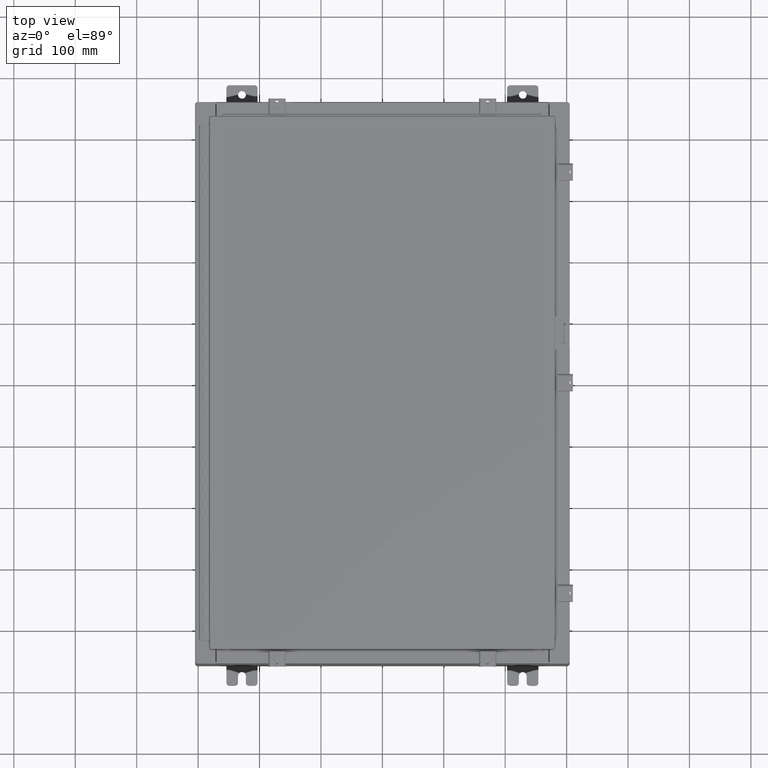
[diagram: clean part render]
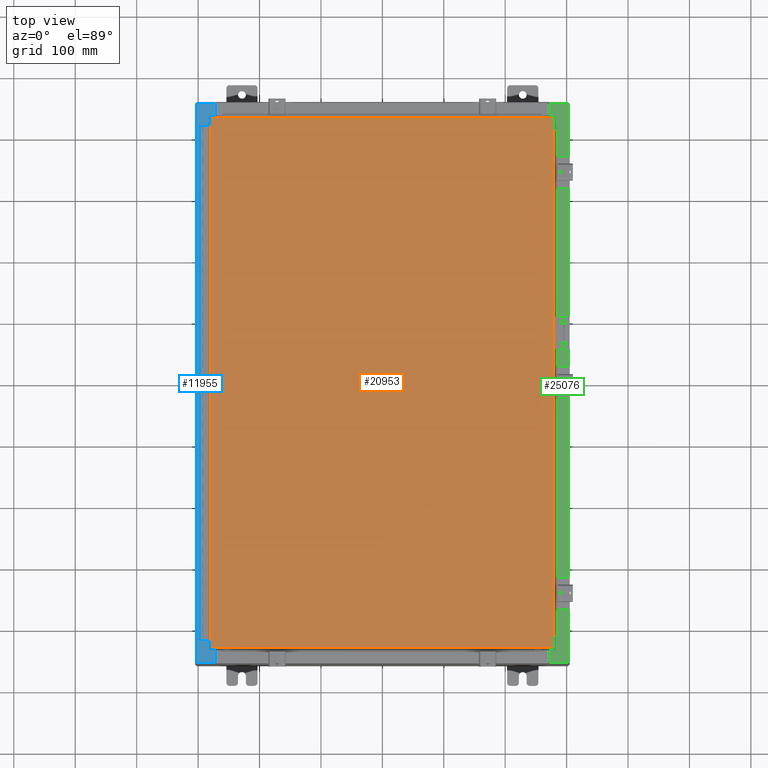
[diagram: same view with three faces highlighted in distinct colors, each labeled with its STEP entity id]
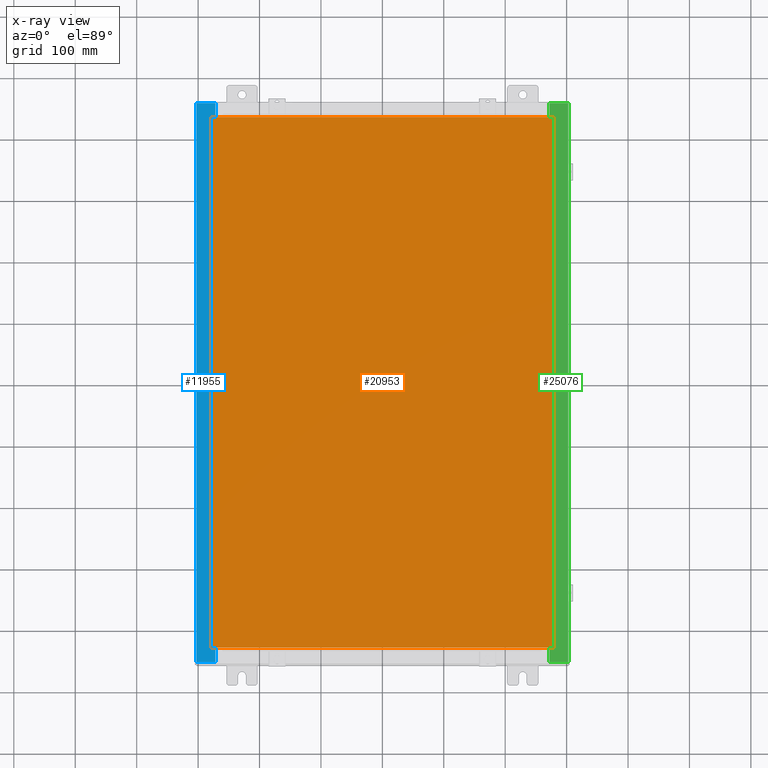
[diagram: x-ray of the same camera — body ghosted, the three highlighted faces saturated]
A machine part, top view with three faces highlighted in distinct colors.
The next image is the same camera in x-ray (body ghosted, the three faces saturated) — at least one of them is partly hidden behind the body in this view.
Their STEP definitions:

[orange] entity #20953 — the highlighted planar face has unit normal (0, 0, -1).
#152 = VECTOR ( 'NONE', #12157, 39.37007874015748100 ) ;
#1570 = ORIENTED_EDGE ( 'NONE', *, *, #20024, .T. ) ;
#1983 = CARTESIAN_POINT ( 'NONE',  ( 0.0000000000000000000, 0.0000000000000000000, 0.0000000000000000000 ) ) ;
#2294 = CARTESIAN_POINT ( 'NONE',  ( 10.99029999999999600, -17.00629999999999200, -2.048885995248197400E-016 ) ) ;
#2465 = FACE_OUTER_BOUND ( 'NONE', #27519, .T. ) ;
#4028 = ORIENTED_EDGE ( 'NONE', *, *, #34566, .T. ) ;
#4742 = VERTEX_POINT ( 'NONE', #30191 ) ;
#5471 = CARTESIAN_POINT ( 'NONE',  ( -10.99030000000000000, -17.00629999999999600, 8.878505979408856000E-016 ) ) ;
#6133 = LINE ( 'NONE', #23297, #39651 ) ;
#7067 = DIRECTION ( 'NONE',  ( 0.0000000000000000000, -1.000000000000000000, 0.0000000000000000000 ) ) ;
#8840 = LINE ( 'NONE', #41299, #152 ) ;
#9511 = CARTESIAN_POINT ( 'NONE',  ( 10.99029999999999600, -17.00629999999999200, -2.048885995248197400E-016 ) ) ;
#9953 = VECTOR ( 'NONE', #39213, 39.37007874015748100 ) ;
#10932 = ORIENTED_EDGE ( 'NONE', *, *, #17748, .T. ) ;
#12157 = DIRECTION ( 'NONE',  ( 1.000000000000000000, -0.0000000000000000000, -0.0000000000000000000 ) ) ;
#15082 = PLANE ( 'NONE',  #23181 ) ;
#17748 = EDGE_CURVE ( 'NONE', #23927, #37015, #8840, .T. ) ;
#19426 = CARTESIAN_POINT ( 'NONE',  ( -10.99030000000000500, 17.00630000000000700, -3.483106191921935600E-015 ) ) ;
#19611 = LINE ( 'NONE', #19744, #9953 ) ;
#19744 = CARTESIAN_POINT ( 'NONE',  ( 10.99029999999999800, 17.00630000000000700, -2.048885995248197400E-016 ) ) ;
#20024 = EDGE_CURVE ( 'NONE', #23460, #23927, #6133, .T. ) ;
#20953 = ADVANCED_FACE ( 'NONE', ( #2465 ), #15082, .F. ) ;
#21624 = DIRECTION ( 'NONE',  ( -1.000000000000000000, 0.0000000000000000000, -0.0000000000000000000 ) ) ;
#23181 = AXIS2_PLACEMENT_3D ( 'NONE', #1983, #41077, #21624 ) ;
#23297 = CARTESIAN_POINT ( 'NONE',  ( -10.99030000000000500, 17.00630000000000700, -3.483106191921935600E-015 ) ) ;
#23460 = VERTEX_POINT ( 'NONE', #19426 ) ;
#23927 = VERTEX_POINT ( 'NONE', #5471 ) ;
#24942 = ORIENTED_EDGE ( 'NONE', *, *, #29465, .T. ) ;
#26908 = VECTOR ( 'NONE', #38782, 39.37007874015748100 ) ;
#27519 = EDGE_LOOP ( 'NONE', ( #10932, #4028, #24942, #1570 ) ) ;
#29465 = EDGE_CURVE ( 'NONE', #4742, #23460, #19611, .T. ) ;
#30191 = CARTESIAN_POINT ( 'NONE',  ( 10.99029999999999800, 17.00630000000000700, -2.048885995248197400E-016 ) ) ;
#34566 = EDGE_CURVE ( 'NONE', #37015, #4742, #35510, .T. ) ;
#35510 = LINE ( 'NONE', #9511, #26908 ) ;
#37015 = VERTEX_POINT ( 'NONE', #2294 ) ;
#38782 = DIRECTION ( 'NONE',  ( 0.0000000000000000000, 1.000000000000000000, 0.0000000000000000000 ) ) ;
#39213 = DIRECTION ( 'NONE',  ( -1.000000000000000000, -0.0000000000000000000, -0.0000000000000000000 ) ) ;
#39651 = VECTOR ( 'NONE', #7067, 39.37007874015748100 ) ;
#41077 = DIRECTION ( 'NONE',  ( 0.0000000000000000000, 0.0000000000000000000, -1.000000000000000000 ) ) ;
#41299 = CARTESIAN_POINT ( 'NONE',  ( -10.99030000000000000, -17.00629999999999600, 8.878505979408856000E-016 ) ) ;

[blue] entity #11955 — the highlighted planar face has unit normal (0, 0, -1).
#35 = CARTESIAN_POINT ( 'NONE',  ( -10.71270000000003900, 16.59374999999999600, 9.925300000000007100 ) ) ;
#442 = DIRECTION ( 'NONE',  ( 1.000000000000000000, -8.758115402030108600E-047, 7.132762385546384700E-015 ) ) ;
#868 = CARTESIAN_POINT ( 'NONE',  ( -10.69970000000003700, -4.575329589613298800E-030, 9.925300000000007100 ) ) ;
#923 = DIRECTION ( 'NONE',  ( 7.132762385546384700E-015, 0.0000000000000000000, -1.000000000000000000 ) ) ;
#1177 = CARTESIAN_POINT ( 'NONE',  ( -10.75005000000003700, 16.59375000000000000, 9.925300000000007100 ) ) ;
#1922 = DIRECTION ( 'NONE',  ( -1.000000000000000000, 0.0000000000000000000, 0.0000000000000000000 ) ) ;
#2357 = VECTOR ( 'NONE', #4454, 39.37007874015748100 ) ;
#2380 = EDGE_CURVE ( 'NONE', #16697, #17267, #20303, .T. ) ;
#2493 = DIRECTION ( 'NONE',  ( 1.000000000000000000, -4.340572780399910900E-014, 0.0000000000000000000 ) ) ;
#2992 = VECTOR ( 'NONE', #2493, 39.37007874015748100 ) ;
#3321 = DIRECTION ( 'NONE',  ( -7.132762385546384700E-015, -0.0000000000000000000, 1.000000000000000000 ) ) ;
#3415 = VERTEX_POINT ( 'NONE', #37296 ) ;
#3619 = LINE ( 'NONE', #24726, #11244 ) ;
#3622 = ORIENTED_EDGE ( 'NONE', *, *, #40176, .F. ) ;
#3743 = LINE ( 'NONE', #35, #27652 ) ;
#3943 = CARTESIAN_POINT ( 'NONE',  ( -7.105562016127570400E-014, 0.0000000000000000000, 9.925300000000083500 ) ) ;
#4213 = AXIS2_PLACEMENT_3D ( 'NONE', #22825, #3321, #26085 ) ;
#4313 = DIRECTION ( 'NONE',  ( -1.000000000000000000, -1.087045829762336900E-031, -7.132762385546384700E-015 ) ) ;
#4454 = DIRECTION ( 'NONE',  ( 1.000000000000000000, 0.0000000000000000000, 0.0000000000000000000 ) ) ;
#4954 = EDGE_LOOP ( 'NONE', ( #29236, #25742, #39435, #23769, #17713, #5712, #15171, #19239, #20960, #41630, #3622, #11830 ) ) ;
#5428 = LINE ( 'NONE', #36132, #23796 ) ;
#5712 = ORIENTED_EDGE ( 'NONE', *, *, #26633, .T. ) ;
#5822 = VERTEX_POINT ( 'NONE', #7020 ) ;
#6568 = CARTESIAN_POINT ( 'NONE',  ( -10.69970000000003700, 16.63110000000000000, 9.925300000000007100 ) ) ;
#7020 = CARTESIAN_POINT ( 'NONE',  ( -10.69970000000003700, -17.92530000000000400, 9.925300000000007100 ) ) ;
#7416 = EDGE_CURVE ( 'NONE', #17854, #36254, #15875, .T. ) ;
#8816 = CARTESIAN_POINT ( 'NONE',  ( -10.75005000000003700, -16.61242499999999100, 9.925300000000007100 ) ) ;
#8917 = CIRCLE ( 'NONE', #4213, 0.01867499999999949400 ) ;
#11244 = VECTOR ( 'NONE', #1922, 39.37007874015748100 ) ;
#11830 = ORIENTED_EDGE ( 'NONE', *, *, #25617, .F. ) ;
#11955 = ADVANCED_FACE ( 'NONE', ( #19091 ), #20409, .F. ) ;
#12023 = CARTESIAN_POINT ( 'NONE',  ( -11.91230000000003600, 17.92529999999999600, 9.925299999999998200 ) ) ;
#12081 = DIRECTION ( 'NONE',  ( 1.000000000000000000, 0.0000000000000000000, 0.0000000000000000000 ) ) ;
#12349 = VECTOR ( 'NONE', #19481, 39.37007874015748100 ) ;
#12457 = CARTESIAN_POINT ( 'NONE',  ( -10.69970000000003700, -4.575329589613298800E-030, 9.925300000000007100 ) ) ;
#13590 = CARTESIAN_POINT ( 'NONE',  ( -10.71270000000003900, 16.59375000000000000, 9.925300000000007100 ) ) ;
#15171 = ORIENTED_EDGE ( 'NONE', *, *, #2380, .F. ) ;
#15295 = DIRECTION ( 'NONE',  ( -0.0000000000000000000, 1.000000000000000000, -0.0000000000000000000 ) ) ;
#15746 = DIRECTION ( 'NONE',  ( -4.276128853718621600E-031, 1.000000000000000000, -3.050061104355376000E-045 ) ) ;
#15875 = LINE ( 'NONE', #20509, #23551 ) ;
#16697 = VERTEX_POINT ( 'NONE', #39247 ) ;
#17158 = CARTESIAN_POINT ( 'NONE',  ( -10.75005000000003700, 16.59375000000000000, 9.925300000000007100 ) ) ;
#17267 = VERTEX_POINT ( 'NONE', #41600 ) ;
#17713 = ORIENTED_EDGE ( 'NONE', *, *, #28892, .T. ) ;
#17854 = VERTEX_POINT ( 'NONE', #35290 ) ;
#17939 = EDGE_CURVE ( 'NONE', #26847, #35328, #3743, .T. ) ;
#17989 = CARTESIAN_POINT ( 'NONE',  ( -10.69970000000003700, 16.63110000000000000, 9.925300000000007100 ) ) ;
#18794 = VERTEX_POINT ( 'NONE', #24643 ) ;
#19091 = FACE_OUTER_BOUND ( 'NONE', #4954, .T. ) ;
#19239 = ORIENTED_EDGE ( 'NONE', *, *, #20984, .F. ) ;
#19381 = EDGE_CURVE ( 'NONE', #35328, #3415, #3619, .T. ) ;
#19481 = DIRECTION ( 'NONE',  ( -1.000000000000000000, -4.340572780399910900E-014, 0.0000000000000000000 ) ) ;
#19541 = DIRECTION ( 'NONE',  ( -0.0000000000000000000, -1.000000000000000000, -0.0000000000000000000 ) ) ;
#20303 = LINE ( 'NONE', #24097, #2992 ) ;
#20409 = PLANE ( 'NONE',  #26935 ) ;
#20509 = CARTESIAN_POINT ( 'NONE',  ( -7.105562016127570400E-014, 17.92529999999999600, 9.925300000000083500 ) ) ;
#20679 = LINE ( 'NONE', #1177, #2357 ) ;
#20960 = ORIENTED_EDGE ( 'NONE', *, *, #19381, .F. ) ;
#20984 = EDGE_CURVE ( 'NONE', #3415, #16697, #33967, .T. ) ;
#22825 = CARTESIAN_POINT ( 'NONE',  ( -10.75005000000003700, 16.61242499999999800, 9.925300000000007100 ) ) ;
#23551 = VECTOR ( 'NONE', #4313, 39.37007874015748100 ) ;
#23743 = DIRECTION ( 'NONE',  ( -1.000000000000000000, 0.0000000000000000000, -7.132762385546384700E-015 ) ) ;
#23769 = ORIENTED_EDGE ( 'NONE', *, *, #39740, .F. ) ;
#23796 = VECTOR ( 'NONE', #442, 39.37007874015748100 ) ;
#24097 = CARTESIAN_POINT ( 'NONE',  ( -10.75005000000003700, -16.63109999999998900, 9.925300000000007100 ) ) ;
#24315 = EDGE_CURVE ( 'NONE', #35454, #17854, #29880, .T. ) ;
#24643 = CARTESIAN_POINT ( 'NONE',  ( -11.91230000000003600, -17.92530000000000400, 9.925299999999998200 ) ) ;
#24726 = CARTESIAN_POINT ( 'NONE',  ( -10.71270000000003900, -16.59374999999998900, 9.925300000000007100 ) ) ;
#25360 = AXIS2_PLACEMENT_3D ( 'NONE', #8816, #31520, #12081 ) ;
#25617 = EDGE_CURVE ( 'NONE', #32968, #26923, #8917, .T. ) ;
#25742 = ORIENTED_EDGE ( 'NONE', *, *, #24315, .T. ) ;
#26085 = DIRECTION ( 'NONE',  ( 1.000000000000000000, 0.0000000000000000000, 0.0000000000000000000 ) ) ;
#26633 = EDGE_CURVE ( 'NONE', #5822, #17267, #32255, .T. ) ;
#26847 = VERTEX_POINT ( 'NONE', #13590 ) ;
#26923 = VERTEX_POINT ( 'NONE', #17158 ) ;
#26935 = AXIS2_PLACEMENT_3D ( 'NONE', #3943, #923, #23743 ) ;
#27099 = CARTESIAN_POINT ( 'NONE',  ( -10.71270000000003900, -16.59374999999998900, 9.925300000000007100 ) ) ;
#27325 = VECTOR ( 'NONE', #15295, 39.37007874015748100 ) ;
#27652 = VECTOR ( 'NONE', #19541, 39.37007874015748100 ) ;
#27881 = EDGE_CURVE ( 'NONE', #35454, #32968, #31655, .T. ) ;
#28415 = CARTESIAN_POINT ( 'NONE',  ( -11.91230000000003600, 17.92529999999999600, 9.925299999999998200 ) ) ;
#28892 = EDGE_CURVE ( 'NONE', #18794, #5822, #5428, .T. ) ;
#29236 = ORIENTED_EDGE ( 'NONE', *, *, #27881, .F. ) ;
#29880 = LINE ( 'NONE', #868, #37493 ) ;
#31520 = DIRECTION ( 'NONE',  ( -7.132762385546384700E-015, -0.0000000000000000000, 1.000000000000000000 ) ) ;
#31655 = LINE ( 'NONE', #6568, #12349 ) ;
#32000 = CARTESIAN_POINT ( 'NONE',  ( -10.75005000000003700, 16.63110000000000000, 9.925300000000007100 ) ) ;
#32255 = LINE ( 'NONE', #12457, #39919 ) ;
#32968 = VERTEX_POINT ( 'NONE', #32000 ) ;
#33967 = CIRCLE ( 'NONE', #25360, 0.01867499999999949400 ) ;
#35290 = CARTESIAN_POINT ( 'NONE',  ( -10.69970000000003700, 17.92529999999999600, 9.925300000000007100 ) ) ;
#35328 = VERTEX_POINT ( 'NONE', #27099 ) ;
#35454 = VERTEX_POINT ( 'NONE', #17989 ) ;
#35945 = LINE ( 'NONE', #12023, #27325 ) ;
#36132 = CARTESIAN_POINT ( 'NONE',  ( -7.105562016127570400E-014, -17.92530000000000400, 9.925300000000083500 ) ) ;
#36254 = VERTEX_POINT ( 'NONE', #28415 ) ;
#36698 = DIRECTION ( 'NONE',  ( -4.276128853718621600E-031, 1.000000000000000000, -3.050061104355376000E-045 ) ) ;
#37296 = CARTESIAN_POINT ( 'NONE',  ( -10.75005000000003700, -16.59374999999998900, 9.925300000000007100 ) ) ;
#37493 = VECTOR ( 'NONE', #36698, 39.37007874015748100 ) ;
#39247 = CARTESIAN_POINT ( 'NONE',  ( -10.75005000000003700, -16.63109999999998900, 9.925300000000007100 ) ) ;
#39435 = ORIENTED_EDGE ( 'NONE', *, *, #7416, .T. ) ;
#39740 = EDGE_CURVE ( 'NONE', #18794, #36254, #35945, .T. ) ;
#39919 = VECTOR ( 'NONE', #15746, 39.37007874015748100 ) ;
#40176 = EDGE_CURVE ( 'NONE', #26923, #26847, #20679, .T. ) ;
#41600 = CARTESIAN_POINT ( 'NONE',  ( -10.69970000000003700, -16.63109999999998900, 9.925300000000007100 ) ) ;
#41630 = ORIENTED_EDGE ( 'NONE', *, *, #17939, .F. ) ;

[green] entity #25076 — the highlighted planar face has unit normal (-0, -0, -1).
#382 = LINE ( 'NONE', #11375, #16690 ) ;
#1447 = AXIS2_PLACEMENT_3D ( 'NONE', #31362, #2240, #25053 ) ;
#1458 = EDGE_CURVE ( 'NONE', #34461, #41518, #27004, .T. ) ;
#1493 = LINE ( 'NONE', #32768, #18793 ) ;
#2140 = EDGE_CURVE ( 'NONE', #37811, #28998, #1493, .T. ) ;
#2154 = CARTESIAN_POINT ( 'NONE',  ( 11.91230000000003700, -17.92530000000000000, 9.925300000000001800 ) ) ;
#2190 = VECTOR ( 'NONE', #2943, 39.37007874015748100 ) ;
#2240 = DIRECTION ( 'NONE',  ( -5.349571789159788500E-015, -6.096072018129155300E-017, -1.000000000000000000 ) ) ;
#2308 = CARTESIAN_POINT ( 'NONE',  ( 10.75005000000003400, -16.63109999999999600, 9.925300000000008900 ) ) ;
#2393 = EDGE_CURVE ( 'NONE', #16133, #35554, #37586, .T. ) ;
#2420 = ORIENTED_EDGE ( 'NONE', *, *, #36373, .F. ) ;
#2943 = DIRECTION ( 'NONE',  ( -1.000000000000000000, 0.0000000000000000000, 0.0000000000000000000 ) ) ;
#2969 = DIRECTION ( 'NONE',  ( 0.0000000000000000000, -1.000000000000000000, 6.096072018129155300E-017 ) ) ;
#3214 = VERTEX_POINT ( 'NONE', #22195 ) ;
#3429 = CARTESIAN_POINT ( 'NONE',  ( 10.69970000000003700, 6.050534360153735500E-016, 9.925300000000008900 ) ) ;
#5590 = CARTESIAN_POINT ( 'NONE',  ( 10.69970000000003700, 16.63109999999999600, 9.925300000000008900 ) ) ;
#5595 = DIRECTION ( 'NONE',  ( -0.0000000000000000000, 1.000000000000000000, -0.0000000000000000000 ) ) ;
#5760 = CARTESIAN_POINT ( 'NONE',  ( 10.69970000000003700, 6.050534360153735500E-016, 9.925300000000008900 ) ) ;
#5970 = EDGE_CURVE ( 'NONE', #16133, #11806, #8370, .T. ) ;
#6550 = EDGE_CURVE ( 'NONE', #8604, #7927, #10861, .T. ) ;
#6656 = DIRECTION ( 'NONE',  ( 5.349571789159788500E-015, 6.096072018129155300E-017, 1.000000000000000000 ) ) ;
#7853 = CARTESIAN_POINT ( 'NONE',  ( 10.75005000000003400, -16.61242499999999800, 9.925300000000016000 ) ) ;
#7927 = VERTEX_POINT ( 'NONE', #10083 ) ;
#8301 = ORIENTED_EDGE ( 'NONE', *, *, #14749, .F. ) ;
#8370 = LINE ( 'NONE', #3429, #32230 ) ;
#8402 = DIRECTION ( 'NONE',  ( -1.000000000000000000, 0.0000000000000000000, 5.349571789159789300E-015 ) ) ;
#8604 = VERTEX_POINT ( 'NONE', #26676 ) ;
#9652 = CARTESIAN_POINT ( 'NONE',  ( 10.75005000000003400, 16.63109999999999300, 9.925300000000016000 ) ) ;
#10083 = CARTESIAN_POINT ( 'NONE',  ( 10.71270000000003500, -16.59374999999999600, 9.925300000000016000 ) ) ;
#10693 = EDGE_CURVE ( 'NONE', #35554, #8604, #35940, .T. ) ;
#10861 = LINE ( 'NONE', #25727, #2190 ) ;
#11091 = DIRECTION ( 'NONE',  ( 1.000000000000000000, 0.0000000000000000000, 0.0000000000000000000 ) ) ;
#11375 = CARTESIAN_POINT ( 'NONE',  ( 5.335691853495959100E-014, -17.92530000000000000, 9.925300000000067500 ) ) ;
#11520 = DIRECTION ( 'NONE',  ( 1.000000000000000000, 0.0000000000000000000, 8.681145560800575300E-014 ) ) ;
#11672 = ORIENTED_EDGE ( 'NONE', *, *, #28611, .F. ) ;
#11784 = EDGE_CURVE ( 'NONE', #28998, #3214, #24238, .T. ) ;
#11806 = VERTEX_POINT ( 'NONE', #23019 ) ;
#11923 = PLANE ( 'NONE',  #1447 ) ;
#12253 = EDGE_CURVE ( 'NONE', #41518, #33780, #42000, .T. ) ;
#12915 = DIRECTION ( 'NONE',  ( -1.000000000000000000, 0.0000000000000000000, -8.681145560800575300E-014 ) ) ;
#14749 = EDGE_CURVE ( 'NONE', #7927, #37811, #41564, .T. ) ;
#15487 = CARTESIAN_POINT ( 'NONE',  ( 11.91230000000003700, 17.92529999999999600, 9.925300000000001800 ) ) ;
#16133 = VERTEX_POINT ( 'NONE', #29927 ) ;
#16690 = VECTOR ( 'NONE', #21190, 39.37007874015748100 ) ;
#17269 = ORIENTED_EDGE ( 'NONE', *, *, #10693, .F. ) ;
#17518 = ORIENTED_EDGE ( 'NONE', *, *, #2393, .F. ) ;
#18793 = VECTOR ( 'NONE', #28643, 39.37007874015748100 ) ;
#19138 = ORIENTED_EDGE ( 'NONE', *, *, #2140, .F. ) ;
#19729 = CARTESIAN_POINT ( 'NONE',  ( 10.71270000000003500, 16.59374999999999600, 9.925300000000016000 ) ) ;
#21190 = DIRECTION ( 'NONE',  ( 1.000000000000000000, 0.0000000000000000000, -5.349571789159789300E-015 ) ) ;
#21265 = DIRECTION ( 'NONE',  ( -6.096072018129156600E-017, -1.000000000000000000, 6.096072018129187400E-017 ) ) ;
#21696 = FACE_OUTER_BOUND ( 'NONE', #28073, .T. ) ;
#22195 = CARTESIAN_POINT ( 'NONE',  ( 10.75005000000003400, 16.63109999999999300, 9.925300000000008900 ) ) ;
#23019 = CARTESIAN_POINT ( 'NONE',  ( 10.69970000000003700, -17.92530000000000000, 9.925300000000010700 ) ) ;
#23547 = ORIENTED_EDGE ( 'NONE', *, *, #1458, .T. ) ;
#24238 = CIRCLE ( 'NONE', #40804, 0.01867499999999949400 ) ;
#24333 = LINE ( 'NONE', #34163, #40537 ) ;
#25042 = LINE ( 'NONE', #9652, #41252 ) ;
#25053 = DIRECTION ( 'NONE',  ( -1.000000000000000000, 0.0000000000000000000, 5.349571789159788500E-015 ) ) ;
#25076 = ADVANCED_FACE ( 'NONE', ( #21696 ), #11923, .F. ) ;
#25727 = CARTESIAN_POINT ( 'NONE',  ( 10.75005000000003400, -16.59374999999999600, 9.925300000000016000 ) ) ;
#26123 = CARTESIAN_POINT ( 'NONE',  ( 10.75005000000003400, 16.61242499999999500, 9.925300000000016000 ) ) ;
#26247 = ORIENTED_EDGE ( 'NONE', *, *, #11784, .F. ) ;
#26676 = CARTESIAN_POINT ( 'NONE',  ( 10.75005000000003400, -16.59374999999999600, 9.925300000000008900 ) ) ;
#27004 = LINE ( 'NONE', #38785, #34596 ) ;
#27439 = ORIENTED_EDGE ( 'NONE', *, *, #39252, .T. ) ;
#27929 = VECTOR ( 'NONE', #11520, 39.37007874015748100 ) ;
#28073 = EDGE_LOOP ( 'NONE', ( #17518, #30964, #27439, #11672, #23547, #40297, #2420, #26247, #19138, #8301, #29418, #17269 ) ) ;
#28081 = CARTESIAN_POINT ( 'NONE',  ( 10.69970000000003700, 17.92529999999999600, 9.925300000000008900 ) ) ;
#28611 = EDGE_CURVE ( 'NONE', #34461, #42100, #24333, .T. ) ;
#28643 = DIRECTION ( 'NONE',  ( 1.000000000000000000, 0.0000000000000000000, 0.0000000000000000000 ) ) ;
#28998 = VERTEX_POINT ( 'NONE', #30303 ) ;
#29354 = DIRECTION ( 'NONE',  ( 1.000000000000000000, 0.0000000000000000000, 0.0000000000000000000 ) ) ;
#29418 = ORIENTED_EDGE ( 'NONE', *, *, #6550, .F. ) ;
#29927 = CARTESIAN_POINT ( 'NONE',  ( 10.69970000000003700, -16.63109999999999600, 9.925300000000008900 ) ) ;
#30303 = CARTESIAN_POINT ( 'NONE',  ( 10.75005000000003400, 16.59374999999999600, 9.925300000000007100 ) ) ;
#30552 = DIRECTION ( 'NONE',  ( 5.349571789159788500E-015, 6.096072018129155300E-017, 1.000000000000000000 ) ) ;
#30964 = ORIENTED_EDGE ( 'NONE', *, *, #5970, .T. ) ;
#31053 = CARTESIAN_POINT ( 'NONE',  ( 10.69970000000003700, -16.63109999999999600, 9.925300000000010700 ) ) ;
#31362 = CARTESIAN_POINT ( 'NONE',  ( 5.335691853495958500E-014, 6.050534360153771000E-016, 9.925300000000065700 ) ) ;
#31569 = CARTESIAN_POINT ( 'NONE',  ( 10.71270000000003500, -16.59375000000000000, 9.925300000000016000 ) ) ;
#32230 = VECTOR ( 'NONE', #2969, 39.37007874015748100 ) ;
#32768 = CARTESIAN_POINT ( 'NONE',  ( 10.71270000000003500, 16.59374999999999600, 9.925300000000016000 ) ) ;
#33339 = VECTOR ( 'NONE', #34983, 39.37007874015748100 ) ;
#33780 = VERTEX_POINT ( 'NONE', #5590 ) ;
#34163 = CARTESIAN_POINT ( 'NONE',  ( 11.91230000000003600, -17.92530000000000000, 9.925300000000001800 ) ) ;
#34461 = VERTEX_POINT ( 'NONE', #15487 ) ;
#34596 = VECTOR ( 'NONE', #8402, 39.37007874015748100 ) ;
#34983 = DIRECTION ( 'NONE',  ( 0.0000000000000000000, -1.000000000000000000, 6.096072018129155300E-017 ) ) ;
#35554 = VERTEX_POINT ( 'NONE', #2308 ) ;
#35940 = CIRCLE ( 'NONE', #36116, 0.01867499999999949400 ) ;
#36116 = AXIS2_PLACEMENT_3D ( 'NONE', #7853, #30552, #11091 ) ;
#36373 = EDGE_CURVE ( 'NONE', #3214, #33780, #25042, .T. ) ;
#37586 = LINE ( 'NONE', #31053, #27929 ) ;
#37811 = VERTEX_POINT ( 'NONE', #19729 ) ;
#38785 = CARTESIAN_POINT ( 'NONE',  ( 5.335691853495957800E-014, 17.92529999999999600, 9.925300000000065700 ) ) ;
#39252 = EDGE_CURVE ( 'NONE', #11806, #42100, #382, .T. ) ;
#39519 = VECTOR ( 'NONE', #5595, 39.37007874015748100 ) ;
#40297 = ORIENTED_EDGE ( 'NONE', *, *, #12253, .T. ) ;
#40537 = VECTOR ( 'NONE', #21265, 39.37007874015748100 ) ;
#40804 = AXIS2_PLACEMENT_3D ( 'NONE', #26123, #6656, #29354 ) ;
#41252 = VECTOR ( 'NONE', #12915, 39.37007874015748100 ) ;
#41518 = VERTEX_POINT ( 'NONE', #28081 ) ;
#41564 = LINE ( 'NONE', #31569, #39519 ) ;
#42000 = LINE ( 'NONE', #5760, #33339 ) ;
#42100 = VERTEX_POINT ( 'NONE', #2154 ) ;